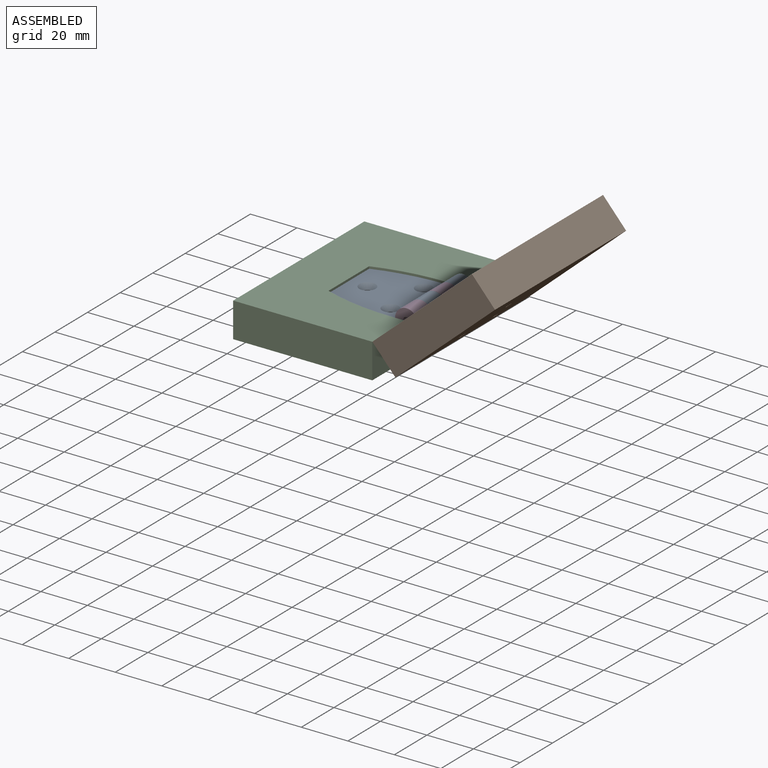
[diagram: assembled view]
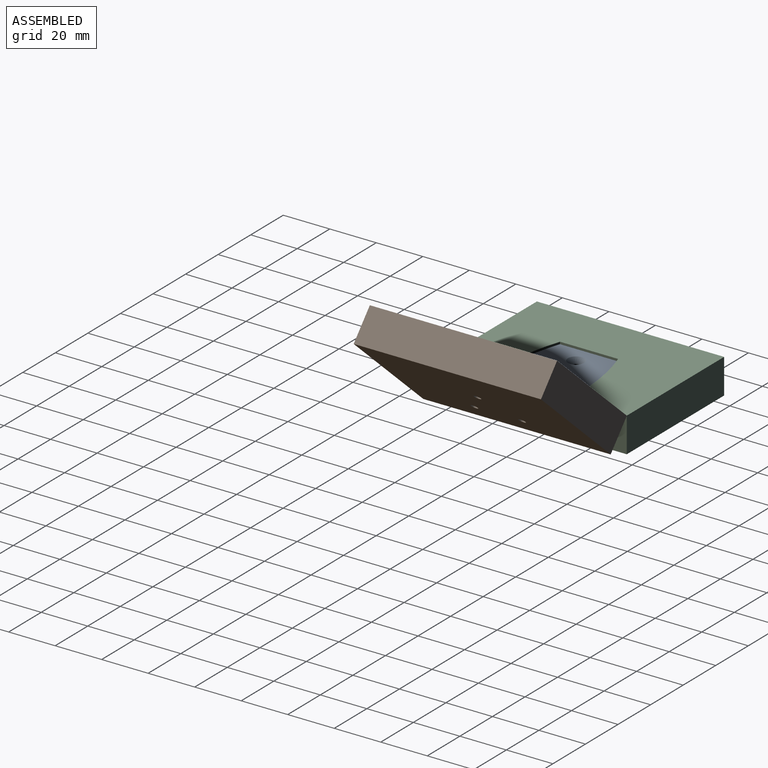
[diagram: assembled view, second angle]
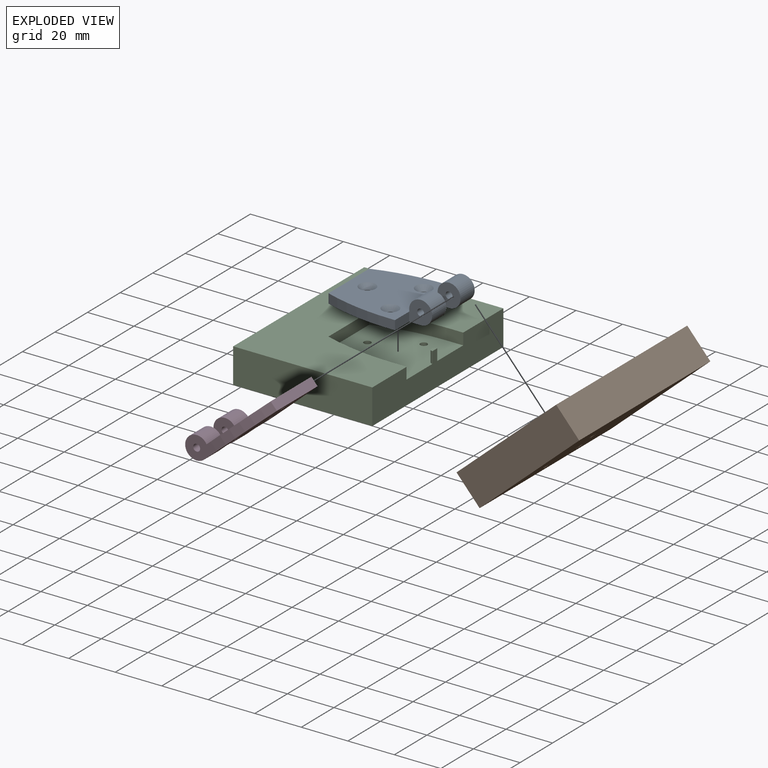
[diagram: exploded view]
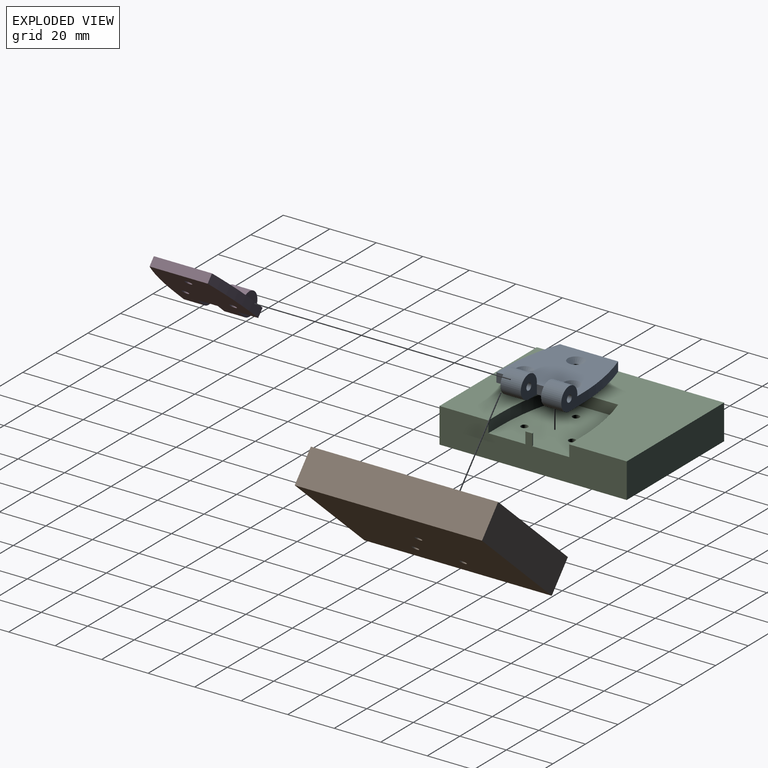
[diagram: exploded view, second angle]
ASSEMBLY  parts=4 mates=4
PART A: 22 faces, bbox 42x34.8x9.9 mm
  f0: plane 4x2.25mm, normal (0,-1,0), area 9mm2, adj f1,f5,f10,f16
  f1: plane 37x34.8mm, normal (0,0,-1), area 1083.8mm2, adj f0,f2,f4,f6,f7,f8,f9,f10
  f2: cylinder r=4.95mm len=9.9mm, axis (0,1,0), area 210.2mm2, adj f1,f4,f5,f14
  f3: cylinder r=1.5mm len=8.66mm, axis (0,-1,0), area 81.6mm2, adj f4,f14
  f4: plane 12.15x9.9mm, normal (0,1,0), area 84.1mm2, adj f1,f2,f3,f5,f6
  f5: plane 34.8x32.14mm, normal (0,0,1), area 905.2mm2, adj f0,f2,f4,f6,f7,f10,f12,f13
  f6: cylinder r=93.07mm len=29.8mm, axis (0,0,-1), area 121.3mm2, adj f1,f4,f5,f7
  f7: plane 25x4mm, normal (-1,0,0), area 100mm2, adj f1,f5,f6,f10
  f8: cylinder r=1.5mm len=3mm, axis (0,0,-1), area 18.8mm2, adj f1,f20
  f9: cylinder r=1.5mm len=3mm, axis (0,0,-1), area 18.8mm2, adj f1,f21
  f10: cylinder r=93.07mm len=29.8mm, axis (0,0,-1), area 121.3mm2, adj f0,f1,f5,f7
  f11: cylinder r=1.5mm len=3mm, axis (0,0,-1), area 18.8mm2, adj f1,f19
  f12: cylinder r=4.95mm len=9.9mm, axis (0,1,0), area 211.3mm2, adj f1,f5,f15,f17
  f13: plane 8.74x4mm, normal (1,0,0), area 35mm2, adj f1,f5,f14,f15
  f14: plane 9.9x9.9mm, normal (0,-1,0), area 75.1mm2, adj f1,f2,f3,f5,f13
  f15: plane 9.9x9.9mm, normal (0,1,0), area 75.1mm2, adj f1,f5,f12,f13,f18
  f16: plane 8.7x4mm, normal (1,0,0), area 34.8mm2, adj f0,f1,f5,f17
  f17: plane 9.9x9.9mm, normal (0,-1,0), area 75.1mm2, adj f1,f5,f12,f16,f18
  f18: cylinder r=1.5mm len=8.7mm, axis (0,-1,0), area 82mm2, adj f15,f17
  f19: cone r=3.5mm half-angle=45deg, axis (0,0,1), area 44.4mm2, adj f5,f11
  f20: cone r=1.5mm half-angle=45deg, axis (0,0,1), area 44.4mm2, adj f5,f8
  f21: cone r=1.5mm half-angle=45deg, axis (0,0,1), area 44.4mm2, adj f5,f9
PART B: 17 faces, bbox 57.1x80.5x15 mm
  f0: plane 80.52x57.08mm, normal (0,0,-1), area 4575mm2, adj f1,f4,f5,f6,f14,f15,f16
  f1: plane 80.52x15mm, normal (-1,0,0), area 1050.5mm2, adj f0,f2,f3,f4,f5,f7,f11,f12
  f2: plane 80.52x57.08mm, normal (0,0,1), area 3404.9mm2, adj f1,f4,f5,f6,f7,f8,f9,f10
  f3: plane 3x1.5mm, normal (0,0,1), area 3.5mm2, adj f1,f12
  f4: plane 57.08x15mm, normal (0,1,0), area 856.2mm2, adj f0,f1,f2,f6
  f5: plane 57.08x15mm, normal (0,-1,0), area 856.2mm2, adj f0,f1,f2,f6
  f6: plane 80.52x15mm, normal (1,0,0), area 1207.9mm2, adj f0,f2,f4,f5
  f7: plane 7.2x4.95mm, normal (0,1,0), area 35.6mm2, adj f1,f2,f8,f13
  f8: cylinder r=93.07mm len=29.8mm, axis (0,0,1), area 150.2mm2, adj f2,f7,f9,f13
  f9: plane 25x4.95mm, normal (-1,0,0), area 123.8mm2, adj f2,f8,f10,f13
  f10: cylinder r=93.07mm len=29.8mm, axis (0,0,1), area 150.2mm2, adj f2,f9,f11,f13
  f11: plane 7.2x4.95mm, normal (0,-1,0), area 35.6mm2, adj f1,f2,f10,f13
  f12: cylinder r=1.5mm len=4.95mm, axis (0,0,1), area 23.3mm2, adj f1,f3,f13
  f13: plane 37x34.8mm, normal (0,0,1), area 1166.6mm2, adj f1,f7,f8,f9,f10,f11,f12,f14
  f14: cylinder r=1.5mm len=10.05mm, axis (0,0,1), area 94.7mm2, adj f0,f13
  f15: cylinder r=1.5mm len=10.05mm, axis (0,0,1), area 94.7mm2, adj f0,f13
  f16: cylinder r=1.5mm len=10.05mm, axis (0,0,1), area 94.7mm2, adj f0,f13
PART C: 17 faces, bbox 59.8x80.5x15 mm
  f0: plane 80.52x59.81mm, normal (0,0,-1), area 4795mm2, adj f1,f4,f5,f6,f14,f15,f16
  f1: plane 80.52x15mm, normal (1,0,0), area 1050.5mm2, adj f0,f2,f3,f4,f6,f7,f8,f9
  f2: plane 80.52x59.81mm, normal (0,0,1), area 3624.9mm2, adj f1,f4,f5,f6,f7,f8,f11,f12
  f3: plane 3x1.5mm, normal (0,0,1), area 3.5mm2, adj f1,f10
  f4: plane 59.81x15mm, normal (0,1,0), area 897.1mm2, adj f0,f1,f2,f5
  f5: plane 80.52x15mm, normal (-1,0,0), area 1207.9mm2, adj f0,f2,f4,f6
  f6: plane 59.81x15mm, normal (0,-1,0), area 897.1mm2, adj f0,f1,f2,f5
  f7: plane 7.2x4.95mm, normal (0,1,0), area 35.6mm2, adj f1,f2,f9,f11
  f8: plane 7.2x4.95mm, normal (0,-1,0), area 35.6mm2, adj f1,f2,f9,f12
  f9: plane 37x34.8mm, normal (0,0,1), area 1166.6mm2, adj f1,f7,f8,f10,f11,f12,f13,f14
  f10: cylinder r=1.5mm len=4.95mm, axis (0,0,1), area 23.3mm2, adj f1,f3,f9
  f11: cylinder r=93.07mm len=29.8mm, axis (0,0,1), area 150.2mm2, adj f2,f7,f9,f13
  f12: cylinder r=93.07mm len=29.8mm, axis (0,0,1), area 150.2mm2, adj f2,f8,f9,f13
  f13: plane 25x4.95mm, normal (1,0,0), area 123.8mm2, adj f2,f9,f11,f12
  f14: cylinder r=1.5mm len=10.05mm, axis (0,0,1), area 94.7mm2, adj f0,f9
  f15: cylinder r=1.5mm len=10.05mm, axis (0,0,1), area 94.7mm2, adj f0,f9
  f16: cylinder r=1.5mm len=10.05mm, axis (0,0,1), area 94.7mm2, adj f0,f9
PART D: same geometry as A
PLACE A t=(3.37,0,0)mm
PLACE B rot(axis=(0,-1,0),41.4deg) t=(3.37,0.04,0)mm
PLACE C t=(3.37,0,0)mm fixed
PLACE D rot(axis=(-0.35,0,0.94),180deg) t=(3.37,0.04,0)mm
MATE cylindrical C.f14 <-> A.f11  axis (0,0,1) through (-8.58,-10.25,-4.95)mm
MATE cylindrical C.f15 <-> A.f9  axis (0,0,1) through (-8.58,10.25,-4.95)mm
MATE cylindrical D.f8 <-> B.f14  axis (0.66,0,-0.75) through (28.4,0.04,15.46)mm
MATE cylindrical A.f3 <-> D.f3  axis (0,-1,0) through (3.37,-8.7,0)mm
